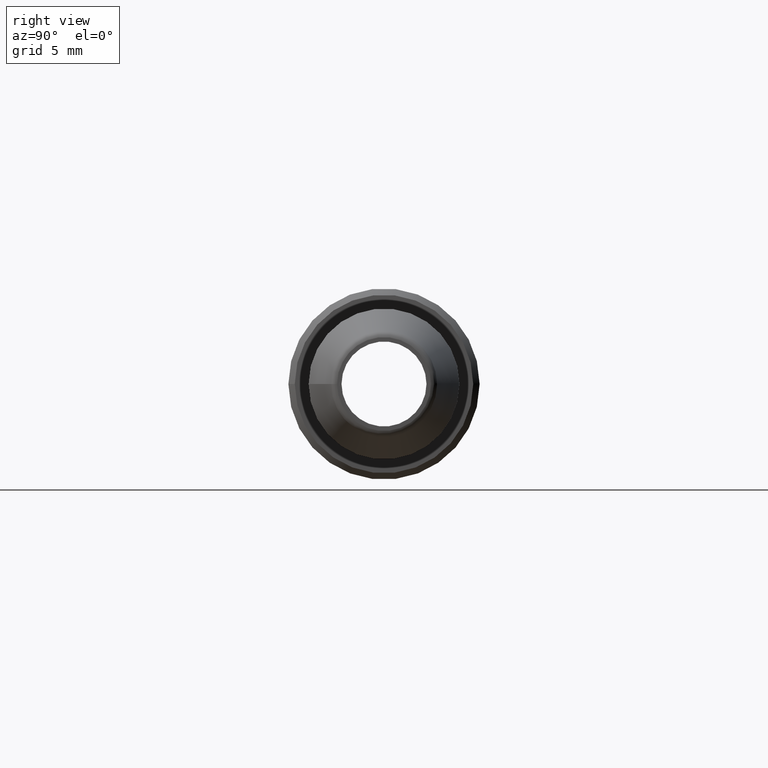
[diagram: clean part render]
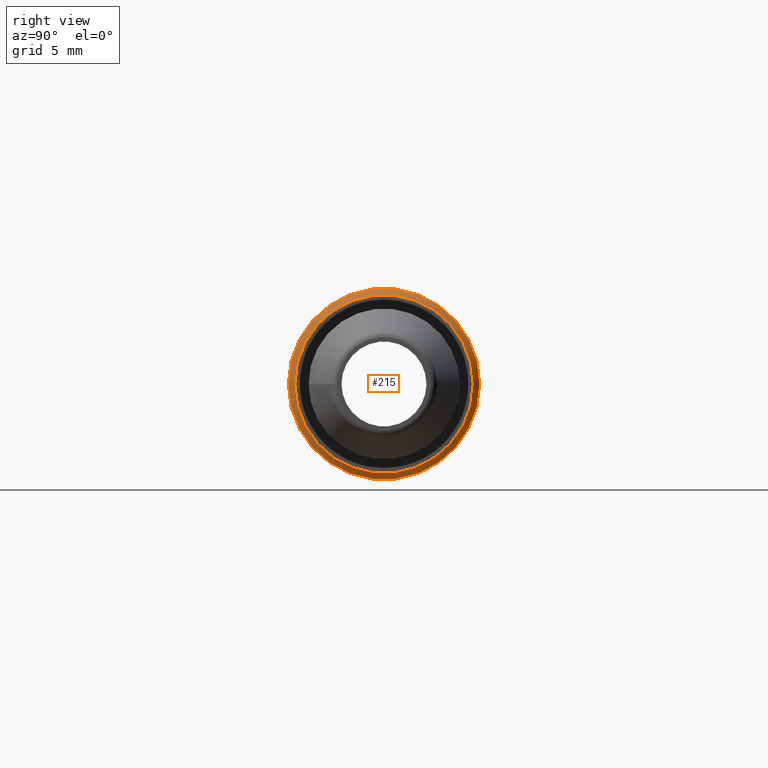
[diagram: same view with one face highlighted and labeled with its STEP entity id]
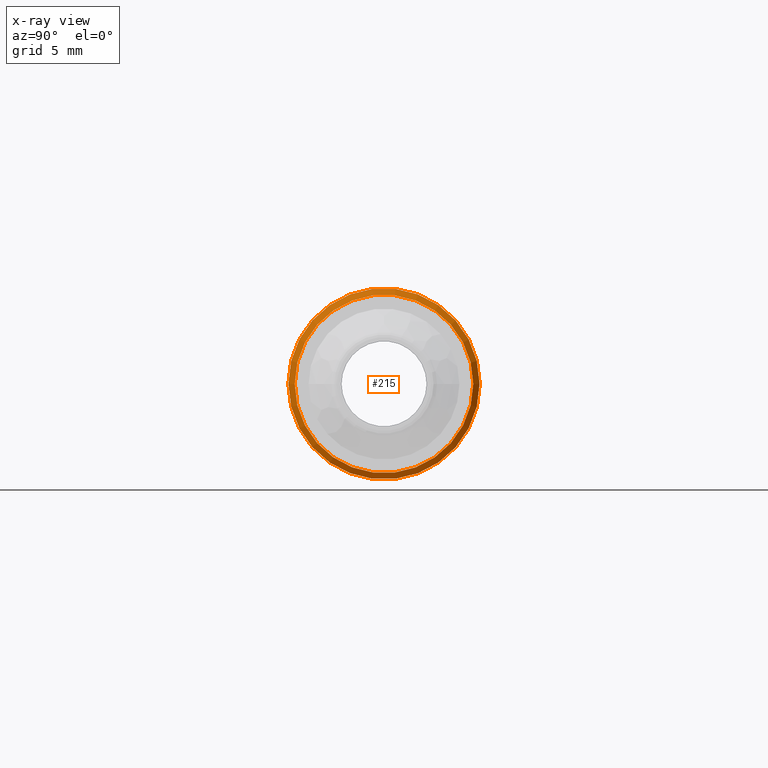
[diagram: x-ray of the same camera — body ghosted, the highlighted face saturated]
A machine part, right view. The second image highlights one B-rep face of the part: STEP entity #215.
The next image is the same camera in x-ray: the body ghosted, the highlighted face saturated — about 0% of this face is hidden behind the body in this view.
In plain terms, the highlighted conical surface has half-angle 45 deg.
Its self-contained STEP definition (entity closure, byte-faithful):
#181=CARTESIAN_POINT('',(15.0,-4.199999999999999,0.0));
#182=VERTEX_POINT('',#181);
#183=CARTESIAN_POINT('',(15.0,0.0,0.0));
#184=DIRECTION('',(-1.0,0.0,0.0));
#185=DIRECTION('',(0.0,-1.0,0.0));
#186=AXIS2_PLACEMENT_3D('',#183,#184,#185);
#187=CIRCLE('',#186,4.199999999999999);
#188=EDGE_CURVE('',#182,#182,#187,.T.);
#196=CARTESIAN_POINT('',(14.850000000000001,0.0,0.0));
#197=DIRECTION('',(-1.0,0.0,0.0));
#198=DIRECTION('',(0.0,-1.0,0.0));
#199=AXIS2_PLACEMENT_3D('',#196,#197,#198);
#200=CONICAL_SURFACE('',#199,4.35,45.000000000000206);
#201=CARTESIAN_POINT('',(14.700000000000003,-4.5,0.0));
#202=VERTEX_POINT('',#201);
#203=CARTESIAN_POINT('',(14.700000000000003,0.0,0.0));
#204=DIRECTION('',(-1.0,0.0,0.0));
#205=DIRECTION('',(0.0,-1.0,0.0));
#206=AXIS2_PLACEMENT_3D('',#203,#204,#205);
#207=CIRCLE('',#206,4.5);
#208=EDGE_CURVE('',#202,#202,#207,.T.);
#209=ORIENTED_EDGE('',*,*,#208,.F.);
#210=EDGE_LOOP('',(#209));
#211=FACE_OUTER_BOUND('',#210,.T.);
#212=ORIENTED_EDGE('',*,*,#188,.T.);
#213=EDGE_LOOP('',(#212));
#214=FACE_BOUND('',#213,.T.);
#215=ADVANCED_FACE('',(#211,#214),#200,.T.);